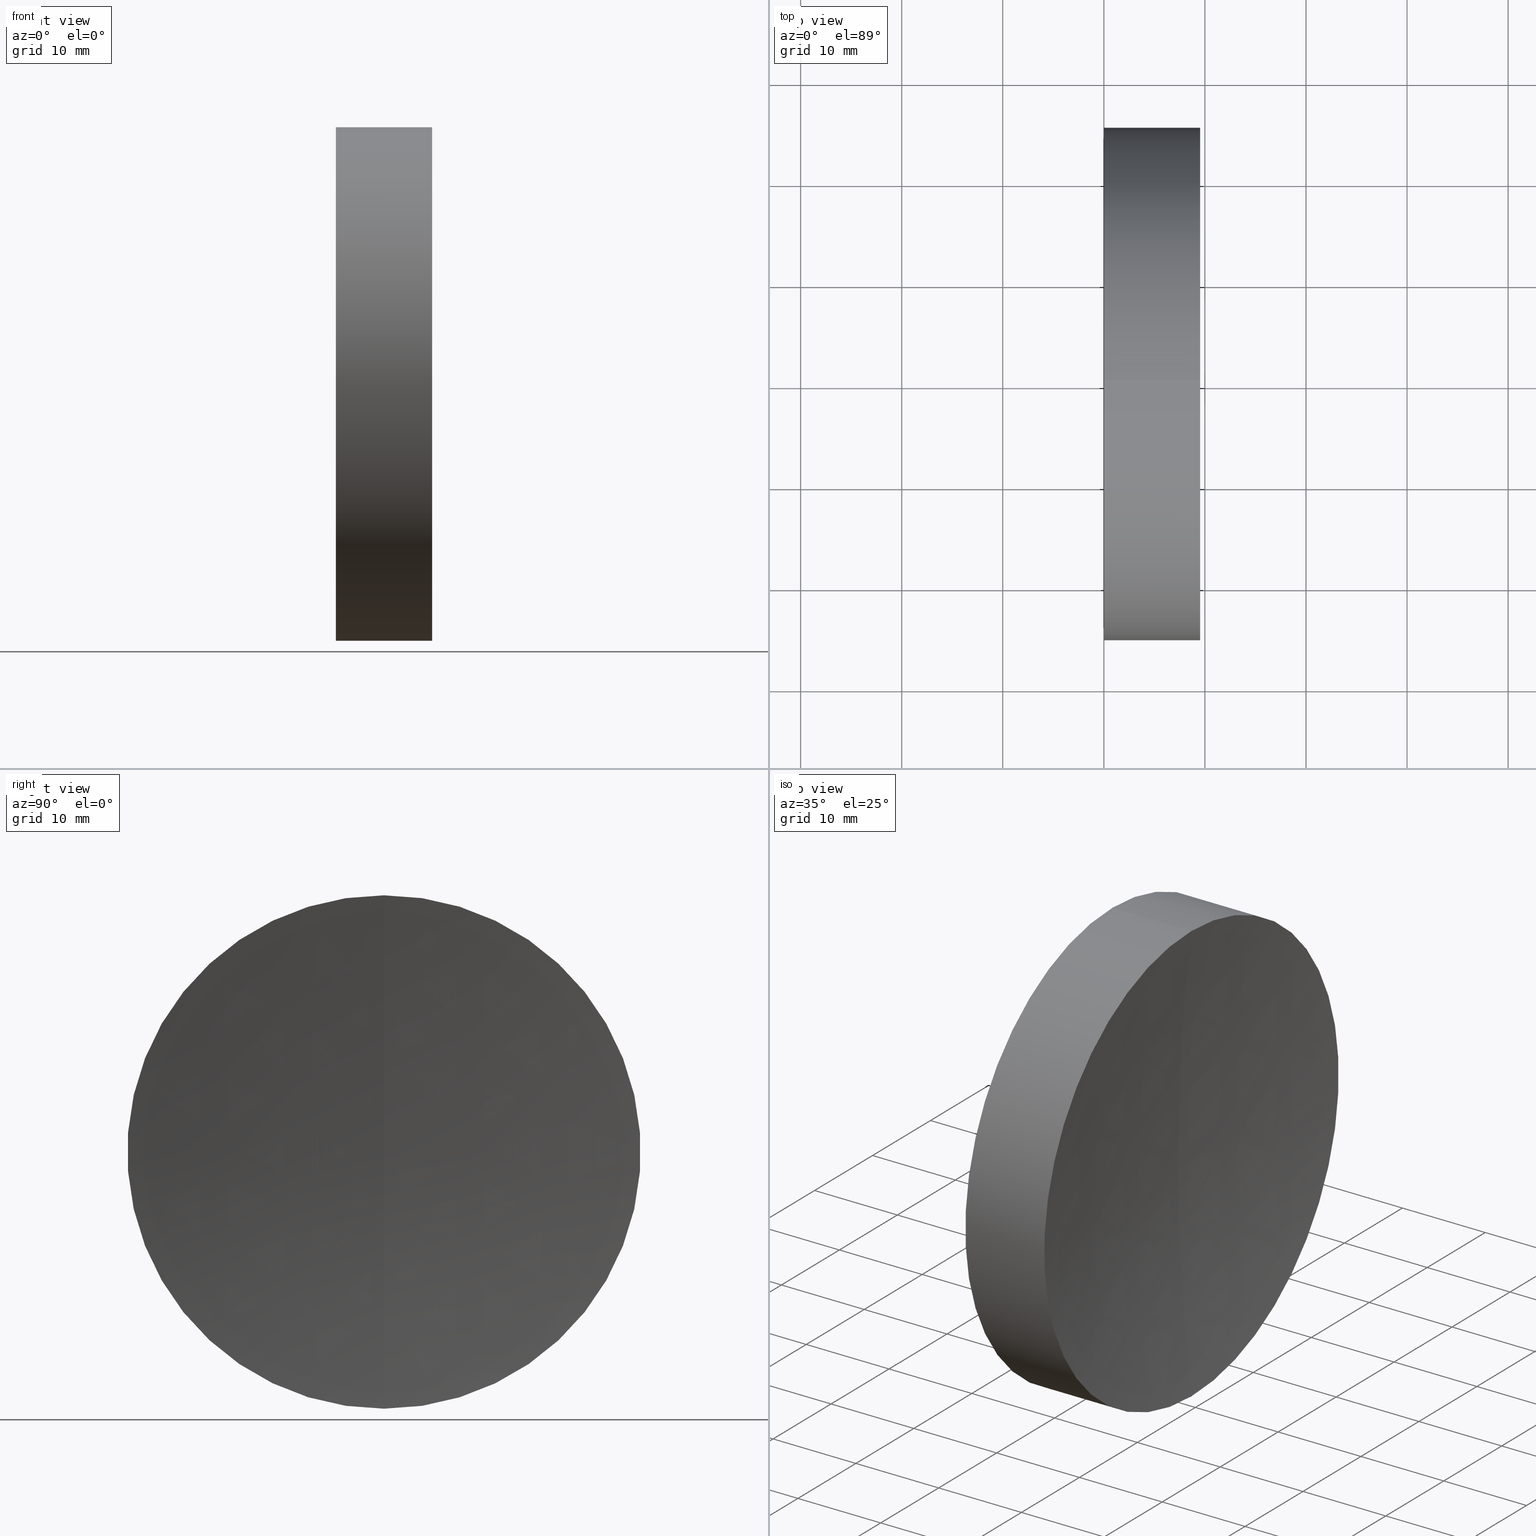
[diagram: canonical four-view strip — front | top / right | iso, engineering-drawing reading convention]
A machine part, canonical four-view strip (front | top / right | iso — engineering-drawing reading convention). The complete STEP part file that produces these views, byte-faithful:
ISO-10303-21;
HEADER;
FILE_DESCRIPTION (( 'STEP AP214' ),
    '1' );
FILE_NAME ('432531.STEP',
    '2019-08-28T03:16:45',
    ( 'user' ),
    ( '΢���й�' ),
    'SwSTEP 2.0',
    'SolidWorks 2016',
    '' );
FILE_SCHEMA (( 'AUTOMOTIVE_DESIGN' ));
ENDSEC;

DATA;
#1 = CIRCLE ( 'NONE', #58, 25.40000000000004800 ) ;
#2 = PLANE ( 'NONE',  #17 ) ;
#3 = ORIENTED_EDGE ( 'NONE', *, *, #10, .F. ) ;
#4 = CARTESIAN_POINT ( 'NONE',  ( 0.0000000000000000000, 0.0000000000000000000, 0.0000000000000000000 ) ) ;
#5 = APPLICATION_CONTEXT ( 'automotive_design' ) ;
#6 = SURFACE_STYLE_USAGE ( .BOTH. , #99 ) ;
#7 = DIRECTION ( 'NONE',  ( -1.000000000000000000, -0.0000000000000000000, -0.0000000000000000000 ) ) ;
#8 = CARTESIAN_POINT ( 'NONE',  ( 0.0000000000000000000, 0.0000000000000000000, 25.39999999999999900 ) ) ;
#9 = ORIENTED_EDGE ( 'NONE', *, *, #137, .F. ) ;
#10 = EDGE_CURVE ( 'NONE', #37, #14, #76, .T. ) ;
#11 = DIRECTION ( 'NONE',  ( 0.0000000000000000000, -1.000000000000000000, 0.0000000000000000000 ) ) ;
#12 = ADVANCED_FACE ( 'NONE', ( #15 ), #25, .T. ) ;
#13 = DIRECTION ( 'NONE',  ( -1.000000000000000000, -0.0000000000000000000, -0.0000000000000000000 ) ) ;
#14 = VERTEX_POINT ( 'NONE', #104 ) ;
#15 = FACE_OUTER_BOUND ( 'NONE', #40, .T. ) ;
#16 = ORIENTED_EDGE ( 'NONE', *, *, #146, .F. ) ;
#17 = AXIS2_PLACEMENT_3D ( 'NONE', #110, #158, #26 ) ;
#18 = DIRECTION ( 'NONE',  ( 1.000000000000000000, 0.0000000000000000000, 0.0000000000000000000 ) ) ;
#19 = CARTESIAN_POINT ( 'NONE',  ( 9.529456599191659500, 0.0000000000000000000, 0.0000000000000000000 ) ) ;
#20 = DIRECTION ( 'NONE',  ( 0.0000000000000000000, 1.000000000000000000, 0.0000000000000000000 ) ) ;
#21 = DIRECTION ( 'NONE',  ( 0.0000000000000000000, 0.0000000000000000000, 1.000000000000000000 ) ) ;
#22 = CIRCLE ( 'NONE', #149, 200.0000000000000000 ) ;
#23 = FILL_AREA_STYLE_COLOUR ( '', #27 ) ;
#24 = SHAPE_DEFINITION_REPRESENTATION ( #55, #66 ) ;
#25 = CYLINDRICAL_SURFACE ( 'NONE', #101, 25.40000000000002300 ) ;
#26 = DIRECTION ( 'NONE',  ( 0.0000000000000000000, 0.0000000000000000000, -1.000000000000000000 ) ) ;
#27 = COLOUR_RGB ( '',1.000000000000000000, 1.000000000000000000, 1.000000000000000000 ) ;
#28 = PRESENTATION_LAYER_ASSIGNMENT (  '', '', ( #163 ) ) ;
#29 = UNCERTAINTY_MEASURE_WITH_UNIT (LENGTH_MEASURE( 1.000000000000000100E-005 ), #143, 'distance_accuracy_value', 'NONE');
#30 =( NAMED_UNIT ( * ) SI_UNIT ( $, .STERADIAN. ) SOLID_ANGLE_UNIT ( ) );
#31 = PRODUCT ( '432531', '432531', '', ( #97 ) ) ;
#32 = DIRECTION ( 'NONE',  ( -1.000000000000000000, -0.0000000000000000000, -0.0000000000000000000 ) ) ;
#33 = FILL_AREA_STYLE ('',( #100 ) ) ;
#34 = CARTESIAN_POINT ( 'NONE',  ( 207.9100000000000300, 0.0000000000000000000, 0.0000000000000000000 ) ) ;
#35 = SURFACE_STYLE_FILL_AREA ( #73 ) ;
#36 = DIRECTION ( 'NONE',  ( 0.0000000000000000000, 1.000000000000000000, 0.0000000000000000000 ) ) ;
#37 = VERTEX_POINT ( 'NONE', #95 ) ;
#38 = SURFACE_STYLE_FILL_AREA ( #33 ) ;
#39 = CIRCLE ( 'NONE', #103, 25.39999999999999900 ) ;
#40 = EDGE_LOOP ( 'NONE', ( #141, #69, #16, #129 ) ) ;
#41 = CARTESIAN_POINT ( 'NONE',  ( 207.9100000000000300, 0.0000000000000000000, 0.0000000000000000000 ) ) ;
#42 = STYLED_ITEM ( 'NONE', ( #130 ), #66 ) ;
#43 = ORIENTED_EDGE ( 'NONE', *, *, #159, .F. ) ;
#44 = ORIENTED_EDGE ( 'NONE', *, *, #166, .F. ) ;
#45 = UNCERTAINTY_MEASURE_WITH_UNIT (LENGTH_MEASURE( 1.000000000000000100E-005 ), #118, 'distance_accuracy_value', 'NONE');
#46 =( NAMED_UNIT ( * ) PLANE_ANGLE_UNIT ( ) SI_UNIT ( $, .RADIAN. ) );
#47 = APPLICATION_PROTOCOL_DEFINITION ( 'draft international standard', 'automotive_design', 1998, #60 ) ;
#48 =( NAMED_UNIT ( * ) PLANE_ANGLE_UNIT ( ) SI_UNIT ( $, .RADIAN. ) );
#49 = VERTEX_POINT ( 'NONE', #52 ) ;
#50 = PRODUCT_RELATED_PRODUCT_CATEGORY ( 'part', '', ( #31 ) ) ;
#51 = LINE ( 'NONE', #122, #78 ) ;
#52 = CARTESIAN_POINT ( 'NONE',  ( 0.0000000000000000000, 3.110602869834278400E-015, -25.39999999999999900 ) ) ;
#53 = DIRECTION ( 'NONE',  ( -0.0000000000000000000, 1.000000000000000000, 1.224646799147353200E-016 ) ) ;
#54 = AXIS2_PLACEMENT_3D ( 'NONE', #4, #117, #18 ) ;
#55 = PRODUCT_DEFINITION_SHAPE ( 'NONE', 'NONE',  #68 ) ;
#56 =( GEOMETRIC_REPRESENTATION_CONTEXT ( 3 ) GLOBAL_UNCERTAINTY_ASSIGNED_CONTEXT ( ( #29 ) ) GLOBAL_UNIT_ASSIGNED_CONTEXT ( ( #143, #46, #133 ) ) REPRESENTATION_CONTEXT ( 'NONE', 'WORKASPACE' ) );
#57 = SURFACE_STYLE_USAGE ( .BOTH. , #150 ) ;
#58 = AXIS2_PLACEMENT_3D ( 'NONE', #19, #87, #160 ) ;
#59 = FACE_OUTER_BOUND ( 'NONE', #107, .T. ) ;
#60 = APPLICATION_CONTEXT ( 'automotive_design' ) ;
#61 = DIRECTION ( 'NONE',  ( 0.0000000000000000000, 0.0000000000000000000, 1.000000000000000000 ) ) ;
#62 = CIRCLE ( 'NONE', #72, 25.39999999999999900 ) ;
#63 = MECHANICAL_DESIGN_GEOMETRIC_PRESENTATION_REPRESENTATION (  '', ( #42 ), #56 ) ;
#64 = ADVANCED_FACE ( 'NONE', ( #98 ), #2, .F. ) ;
#65 = VECTOR ( 'NONE', #88, 1000.000000000000000 ) ;
#66 = ADVANCED_BREP_SHAPE_REPRESENTATION ( '432531', ( #148, #54 ), #154 ) ;
#67 = DIRECTION ( 'NONE',  ( 0.0000000000000000000, -1.224646799147353200E-016, 1.000000000000000000 ) ) ;
#68 = PRODUCT_DEFINITION ( 'δ֪', '', #156, #115 ) ;
#69 = ORIENTED_EDGE ( 'NONE', *, *, #142, .T. ) ;
#70 = AXIS2_PLACEMENT_3D ( 'NONE', #136, #36, #96 ) ;
#71 = PRESENTATION_LAYER_ASSIGNMENT (  '', '', ( #42 ) ) ;
#72 = AXIS2_PLACEMENT_3D ( 'NONE', #125, #13, #106 ) ;
#73 = FILL_AREA_STYLE ('',( #23 ) ) ;
#74 = CARTESIAN_POINT ( 'NONE',  ( 207.9100000000000300, 0.0000000000000000000, 0.0000000000000000000 ) ) ;
#75 = EDGE_LOOP ( 'NONE', ( #90, #89, #165, #43 ) ) ;
#76 = CIRCLE ( 'NONE', #114, 200.0000000000000000 ) ;
#77 = DIRECTION ( 'NONE',  ( -1.000000000000000000, -0.0000000000000000000, -0.0000000000000000000 ) ) ;
#78 = VECTOR ( 'NONE', #7, 1000.000000000000000 ) ;
#79 = CARTESIAN_POINT ( 'NONE',  ( 0.0000000000000000000, 0.0000000000000000000, 0.0000000000000000000 ) ) ;
#80 = ORIENTED_EDGE ( 'NONE', *, *, #153, .F. ) ;
#81 = CARTESIAN_POINT ( 'NONE',  ( 0.0000000000000000000, 0.0000000000000000000, 0.0000000000000000000 ) ) ;
#82 = ORIENTED_EDGE ( 'NONE', *, *, #10, .T. ) ;
#83 = AXIS2_PLACEMENT_3D ( 'NONE', #119, #32, #61 ) ;
#84 = FACE_OUTER_BOUND ( 'NONE', #132, .T. ) ;
#85 = SPHERICAL_SURFACE ( 'NONE', #70, 200.0000000000000000 ) ;
#86 = APPLICATION_PROTOCOL_DEFINITION ( 'draft international standard', 'automotive_design', 1998, #5 ) ;
#87 = DIRECTION ( 'NONE',  ( -1.000000000000000000, -0.0000000000000000000, -0.0000000000000000000 ) ) ;
#88 = DIRECTION ( 'NONE',  ( -1.000000000000000000, -0.0000000000000000000, -0.0000000000000000000 ) ) ;
#89 = ORIENTED_EDGE ( 'NONE', *, *, #166, .T. ) ;
#90 = ORIENTED_EDGE ( 'NONE', *, *, #142, .F. ) ;
#91 = CARTESIAN_POINT ( 'NONE',  ( 9.529456599191659500, 3.110602869834278400E-015, -25.40000000000001300 ) ) ;
#92 = UNCERTAINTY_MEASURE_WITH_UNIT (LENGTH_MEASURE( 1.000000000000000100E-005 ), #144, 'distance_accuracy_value', 'NONE');
#93 = EDGE_LOOP ( 'NONE', ( #111, #120 ) ) ;
#94 = CYLINDRICAL_SURFACE ( 'NONE', #109, 25.40000000000002300 ) ;
#95 = CARTESIAN_POINT ( 'NONE',  ( 9.529456599191659500, 0.0000000000000000000, 25.40000000000001300 ) ) ;
#96 = DIRECTION ( 'NONE',  ( 0.0000000000000000000, 0.0000000000000000000, 1.000000000000000000 ) ) ;
#97 = PRODUCT_CONTEXT ( 'NONE', #60, 'mechanical' ) ;
#98 = FACE_OUTER_BOUND ( 'NONE', #93, .T. ) ;
#99 = SURFACE_SIDE_STYLE ('',( #38 ) ) ;
#100 = FILL_AREA_STYLE_COLOUR ( '', #105 ) ;
#101 = AXIS2_PLACEMENT_3D ( 'NONE', #81, #128, #131 ) ;
#102 = CARTESIAN_POINT ( 'NONE',  ( 0.0000000000000000000, 0.0000000000000000000, 0.0000000000000000000 ) ) ;
#103 = AXIS2_PLACEMENT_3D ( 'NONE', #102, #121, #21 ) ;
#104 = CARTESIAN_POINT ( 'NONE',  ( 7.910000000000000100, 0.0000000000000000000, 1.224646799147353200E-014 ) ) ;
#105 = COLOUR_RGB ( '',1.000000000000000000, 1.000000000000000000, 1.000000000000000000 ) ;
#106 = DIRECTION ( 'NONE',  ( 0.0000000000000000000, 0.0000000000000000000, 1.000000000000000000 ) ) ;
#107 = EDGE_LOOP ( 'NONE', ( #44, #147, #3 ) ) ;
#108 = DIRECTION ( 'NONE',  ( 0.0000000000000000000, 0.0000000000000000000, -1.000000000000000000 ) ) ;
#109 = AXIS2_PLACEMENT_3D ( 'NONE', #79, #77, #113 ) ;
#110 = CARTESIAN_POINT ( 'NONE',  ( 0.0000000000000000000, 0.0000000000000000000, 0.0000000000000000000 ) ) ;
#111 = ORIENTED_EDGE ( 'NONE', *, *, #146, .T. ) ;
#112 = LINE ( 'NONE', #162, #65 ) ;
#113 = DIRECTION ( 'NONE',  ( 0.0000000000000000000, 0.0000000000000000000, 1.000000000000000000 ) ) ;
#114 = AXIS2_PLACEMENT_3D ( 'NONE', #41, #11, #108 ) ;
#115 = PRODUCT_DEFINITION_CONTEXT ( 'detailed design', #5, 'design' ) ;
#116 = SPHERICAL_SURFACE ( 'NONE', #126, 200.0000000000000000 ) ;
#117 = DIRECTION ( 'NONE',  ( 0.0000000000000000000, 0.0000000000000000000, 1.000000000000000000 ) ) ;
#118 =( LENGTH_UNIT ( ) NAMED_UNIT ( * ) SI_UNIT ( .MILLI., .METRE. ) );
#119 = CARTESIAN_POINT ( 'NONE',  ( 9.529456599191659500, 0.0000000000000000000, 0.0000000000000000000 ) ) ;
#120 = ORIENTED_EDGE ( 'NONE', *, *, #159, .T. ) ;
#121 = DIRECTION ( 'NONE',  ( -1.000000000000000000, -0.0000000000000000000, -0.0000000000000000000 ) ) ;
#122 = CARTESIAN_POINT ( 'NONE',  ( 0.0000000000000000000, 3.110602869834280000E-015, -25.40000000000002300 ) ) ;
#123 =( GEOMETRIC_REPRESENTATION_CONTEXT ( 3 ) GLOBAL_UNCERTAINTY_ASSIGNED_CONTEXT ( ( #45 ) ) GLOBAL_UNIT_ASSIGNED_CONTEXT ( ( #118, #48, #134 ) ) REPRESENTATION_CONTEXT ( 'NONE', 'WORKASPACE' ) );
#124 = ADVANCED_FACE ( 'NONE', ( #161 ), #94, .T. ) ;
#125 = CARTESIAN_POINT ( 'NONE',  ( 0.0000000000000000000, 0.0000000000000000000, 0.0000000000000000000 ) ) ;
#126 = AXIS2_PLACEMENT_3D ( 'NONE', #74, #20, #152 ) ;
#127 = EDGE_CURVE ( 'NONE', #37, #151, #112, .T. ) ;
#128 = DIRECTION ( 'NONE',  ( -1.000000000000000000, -0.0000000000000000000, -0.0000000000000000000 ) ) ;
#129 = ORIENTED_EDGE ( 'NONE', *, *, #127, .F. ) ;
#130 = PRESENTATION_STYLE_ASSIGNMENT (( #57 ) ) ;
#131 = DIRECTION ( 'NONE',  ( 0.0000000000000000000, 0.0000000000000000000, 1.000000000000000000 ) ) ;
#132 = EDGE_LOOP ( 'NONE', ( #80, #9, #82 ) ) ;
#133 =( NAMED_UNIT ( * ) SI_UNIT ( $, .STERADIAN. ) SOLID_ANGLE_UNIT ( ) );
#134 =( NAMED_UNIT ( * ) SI_UNIT ( $, .STERADIAN. ) SOLID_ANGLE_UNIT ( ) );
#135 =( NAMED_UNIT ( * ) PLANE_ANGLE_UNIT ( ) SI_UNIT ( $, .RADIAN. ) );
#136 = CARTESIAN_POINT ( 'NONE',  ( 207.9100000000000300, 0.0000000000000000000, 0.0000000000000000000 ) ) ;
#137 = EDGE_CURVE ( 'NONE', #37, #155, #140, .T. ) ;
#138 = ADVANCED_FACE ( 'NONE', ( #59 ), #116, .F. ) ;
#139 = PRESENTATION_STYLE_ASSIGNMENT (( #6 ) ) ;
#140 = CIRCLE ( 'NONE', #83, 25.40000000000004800 ) ;
#141 = ORIENTED_EDGE ( 'NONE', *, *, #137, .T. ) ;
#142 = EDGE_CURVE ( 'NONE', #155, #49, #51, .T. ) ;
#143 =( LENGTH_UNIT ( ) NAMED_UNIT ( * ) SI_UNIT ( .MILLI., .METRE. ) );
#144 =( LENGTH_UNIT ( ) NAMED_UNIT ( * ) SI_UNIT ( .MILLI., .METRE. ) );
#145 = CLOSED_SHELL ( 'NONE', ( #12, #138, #64, #164, #124 ) ) ;
#146 = EDGE_CURVE ( 'NONE', #151, #49, #39, .T. ) ;
#147 = ORIENTED_EDGE ( 'NONE', *, *, #153, .T. ) ;
#148 = MANIFOLD_SOLID_BREP ( '��ת1', #145 ) ;
#149 = AXIS2_PLACEMENT_3D ( 'NONE', #34, #53, #67 ) ;
#150 = SURFACE_SIDE_STYLE ('',( #35 ) ) ;
#151 = VERTEX_POINT ( 'NONE', #8 ) ;
#152 = DIRECTION ( 'NONE',  ( 0.0000000000000000000, 0.0000000000000000000, 1.000000000000000000 ) ) ;
#153 = EDGE_CURVE ( 'NONE', #155, #14, #22, .T. ) ;
#154 =( GEOMETRIC_REPRESENTATION_CONTEXT ( 3 ) GLOBAL_UNCERTAINTY_ASSIGNED_CONTEXT ( ( #92 ) ) GLOBAL_UNIT_ASSIGNED_CONTEXT ( ( #144, #135, #30 ) ) REPRESENTATION_CONTEXT ( 'NONE', 'WORKASPACE' ) );
#155 = VERTEX_POINT ( 'NONE', #91 ) ;
#156 = PRODUCT_DEFINITION_FORMATION_WITH_SPECIFIED_SOURCE ( '�κ�', '', #31, .NOT_KNOWN. ) ;
#157 = MECHANICAL_DESIGN_GEOMETRIC_PRESENTATION_REPRESENTATION (  '', ( #163 ), #123 ) ;
#158 = DIRECTION ( 'NONE',  ( 1.000000000000000000, 0.0000000000000000000, 0.0000000000000000000 ) ) ;
#159 = EDGE_CURVE ( 'NONE', #49, #151, #62, .T. ) ;
#160 = DIRECTION ( 'NONE',  ( 0.0000000000000000000, 0.0000000000000000000, 1.000000000000000000 ) ) ;
#161 = FACE_OUTER_BOUND ( 'NONE', #75, .T. ) ;
#162 = CARTESIAN_POINT ( 'NONE',  ( 0.0000000000000000000, 0.0000000000000000000, 25.40000000000002300 ) ) ;
#163 = STYLED_ITEM ( 'NONE', ( #139 ), #148 ) ;
#164 = ADVANCED_FACE ( 'NONE', ( #84 ), #85, .F. ) ;
#165 = ORIENTED_EDGE ( 'NONE', *, *, #127, .T. ) ;
#166 = EDGE_CURVE ( 'NONE', #155, #37, #1, .T. ) ;
ENDSEC;
END-ISO-10303-21;
